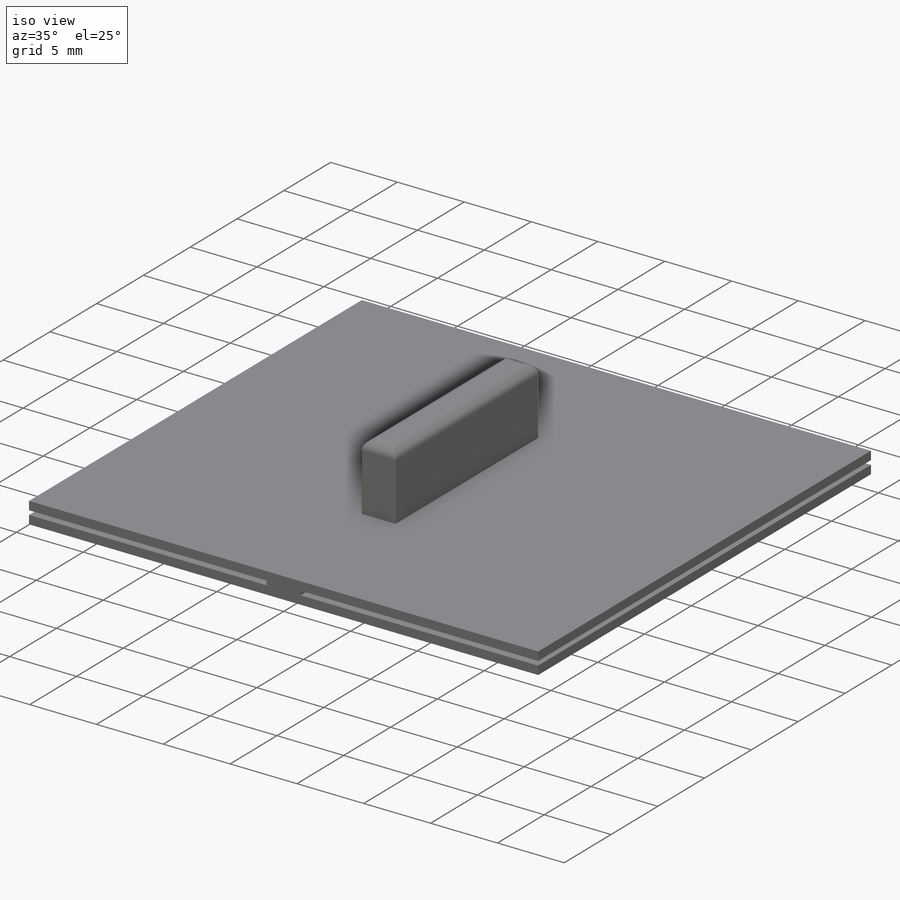
[diagram: iso view]
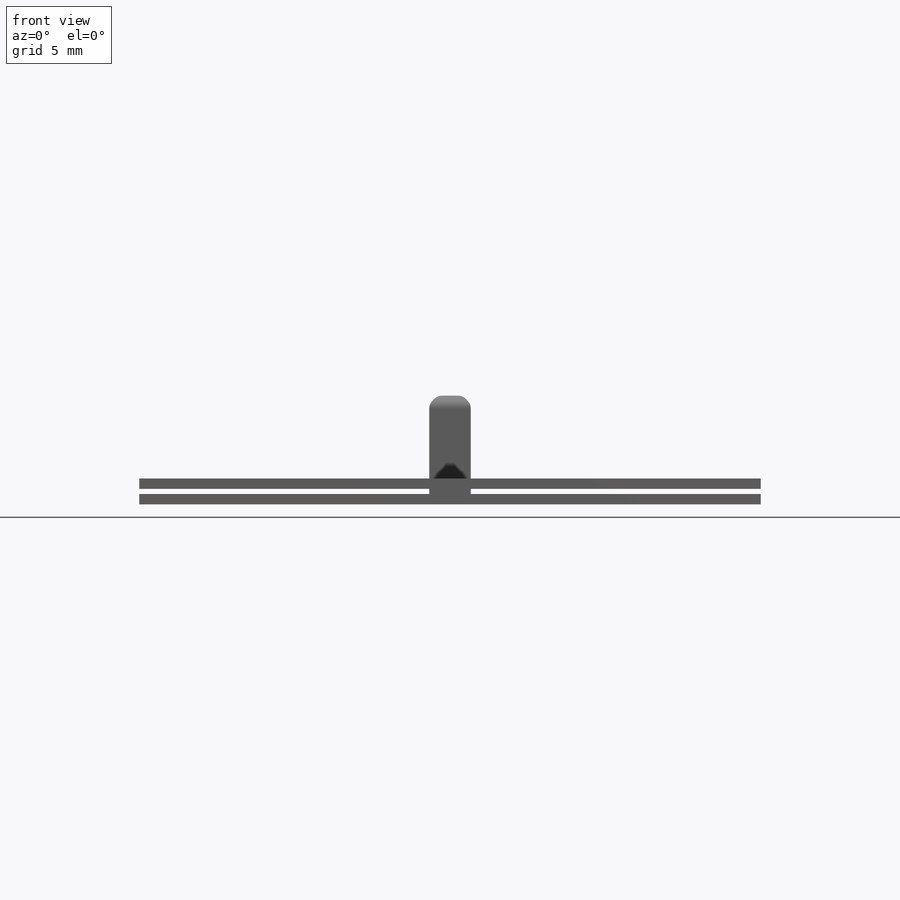
[diagram: front view]
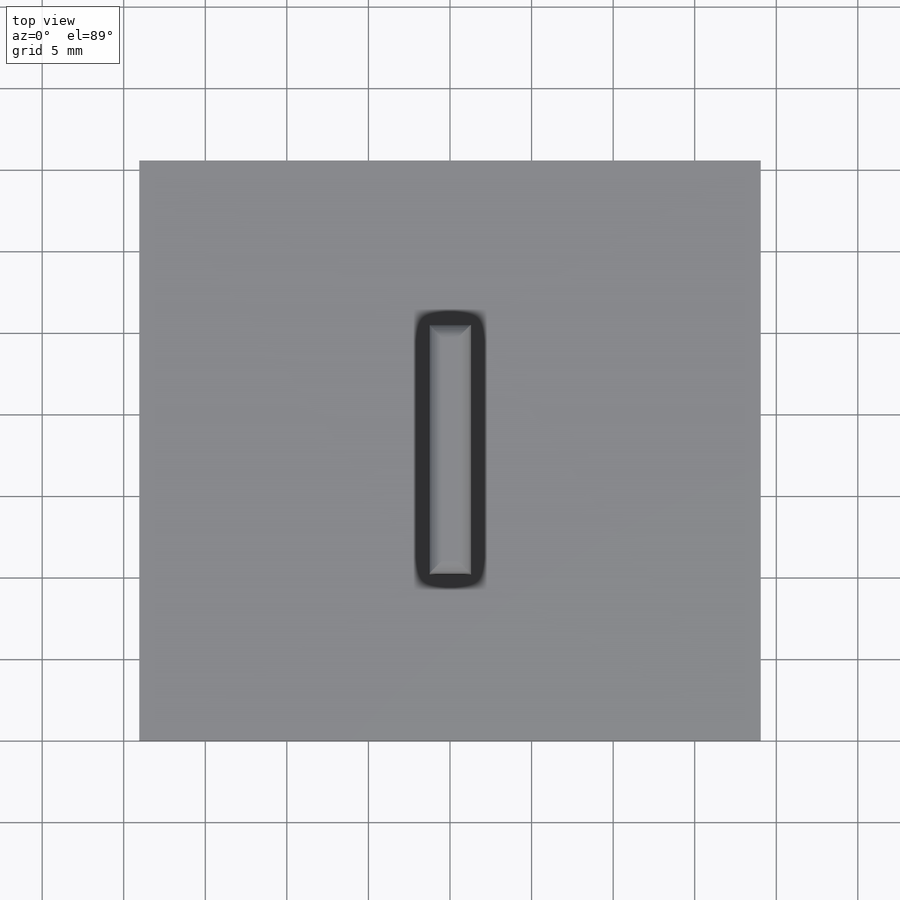
[diagram: top view]
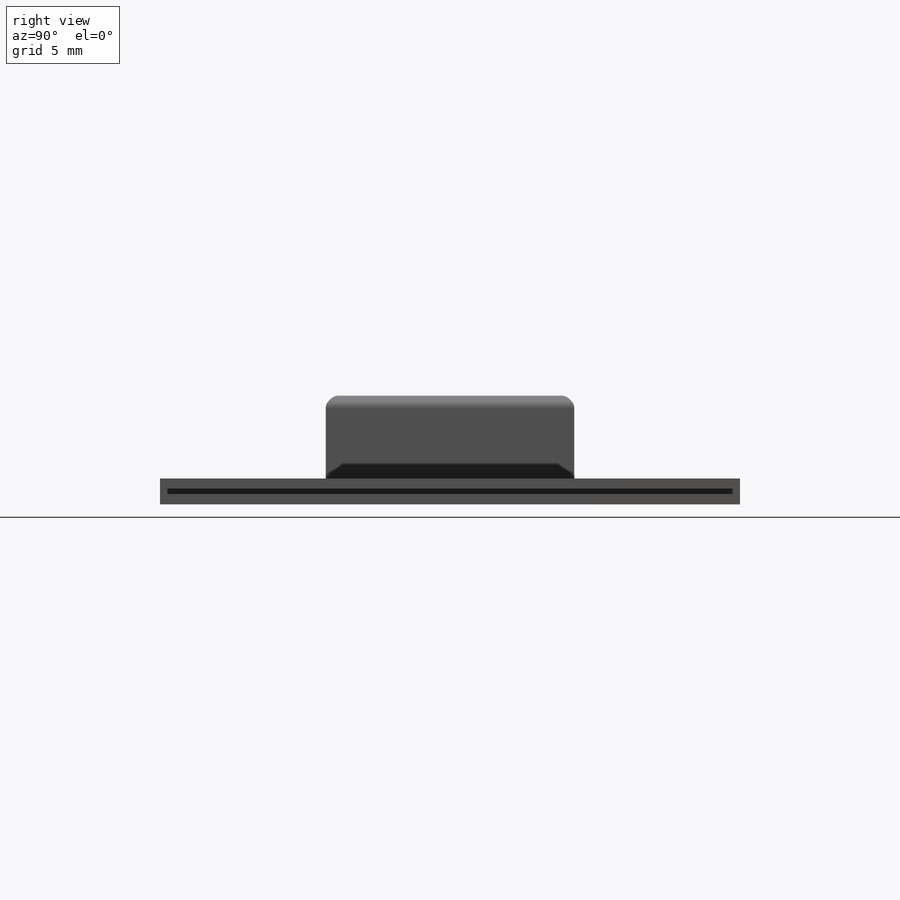
[diagram: right view]
SOLIDWORKS PART (.sldprt)
format: sldprt  version: not decoded by parser v0  size: 228,352 bytes
history: native  units: mm
features: sketch x3, cut_extrude x2, material x1, extrude x1, chamfer x1, fillet x1 (+13 scaffold rows collapsed)
feature tree (22):
  scaffold x13  (default folders/planes/origin — collapsed)
  material  "Material <not specified>"
  sketch  "Sketch1"  dims[D1=38.1mm D2=0.635mm D3=0.3175mm D4=2.54mm D5=5.08mm]
  extrude  "Boss-Extrude1"  Depth=35.56mm
  sketch  "Sketch2"
  cut_extrude  "Cut-Extrude1"  Depth=10.16mm
  sketch  "Sketch3"
  cut_extrude  "Cut-Extrude2"  Depth=10.16mm
  chamfer  "Chamfer1"  Distance=0.508mm Angle=45deg
  fillet  "Fillet1"  Radius=0.635mm
decode coverage: 6 of 8 modeling features carry decoded parameters
note: suppression state not decoded; provenance and decode notes live in map.json
